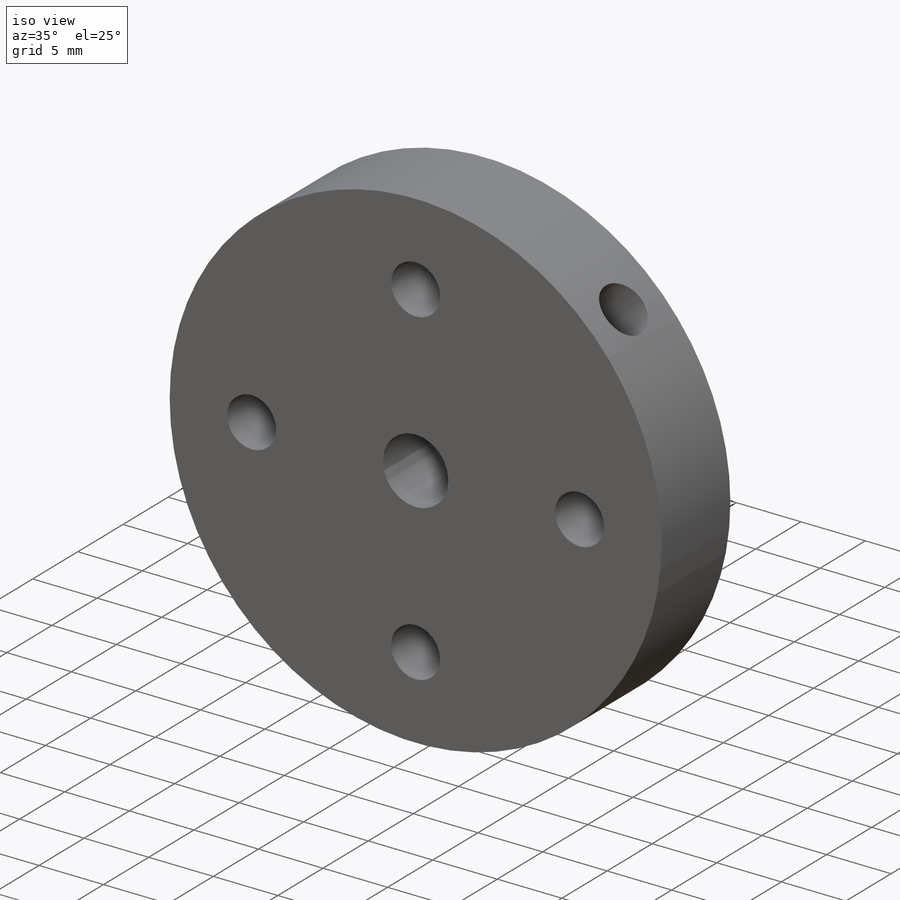
[diagram: iso view]
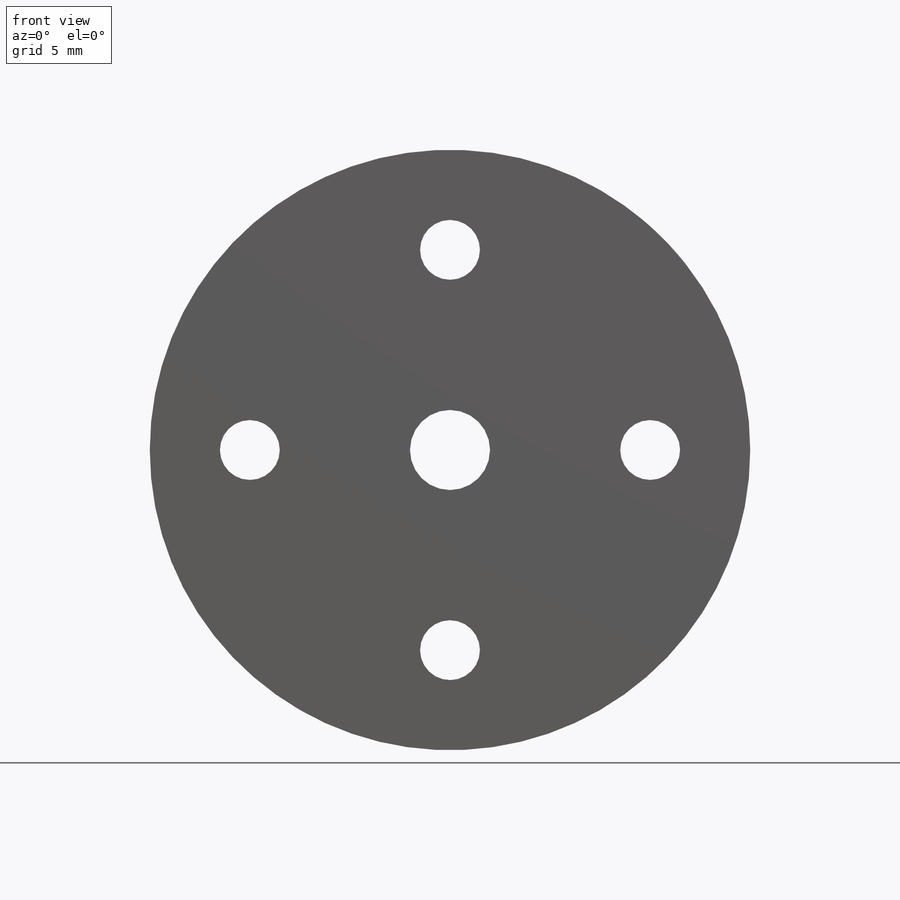
[diagram: front view]
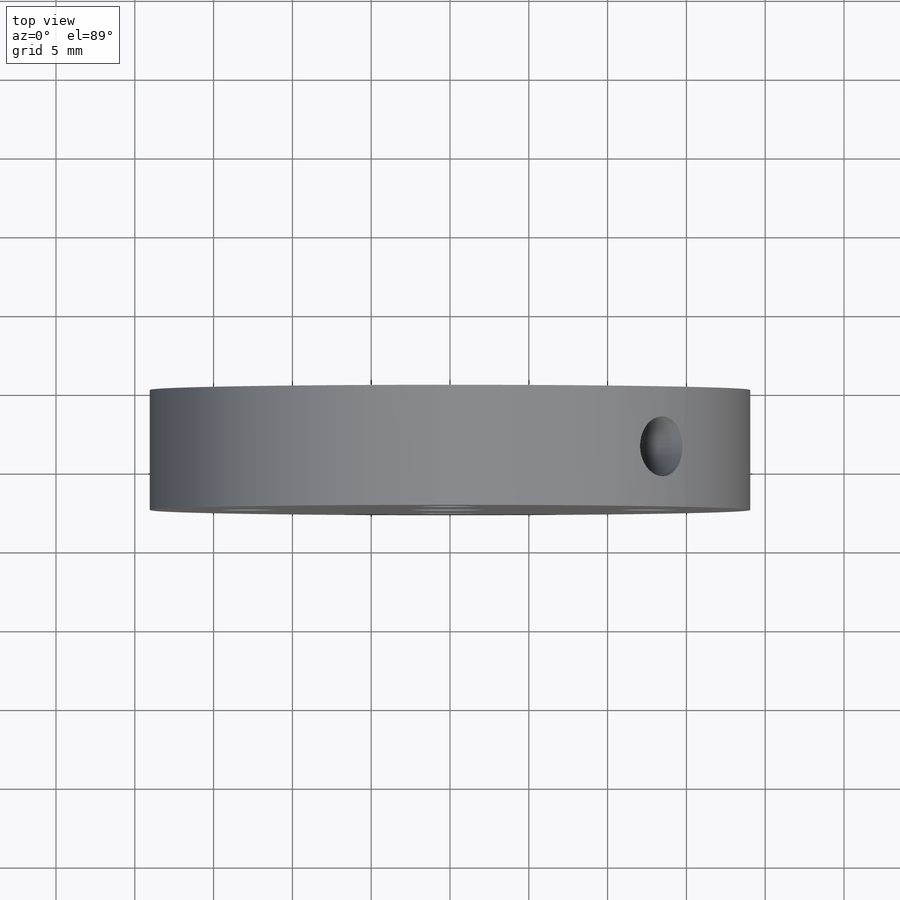
[diagram: top view]
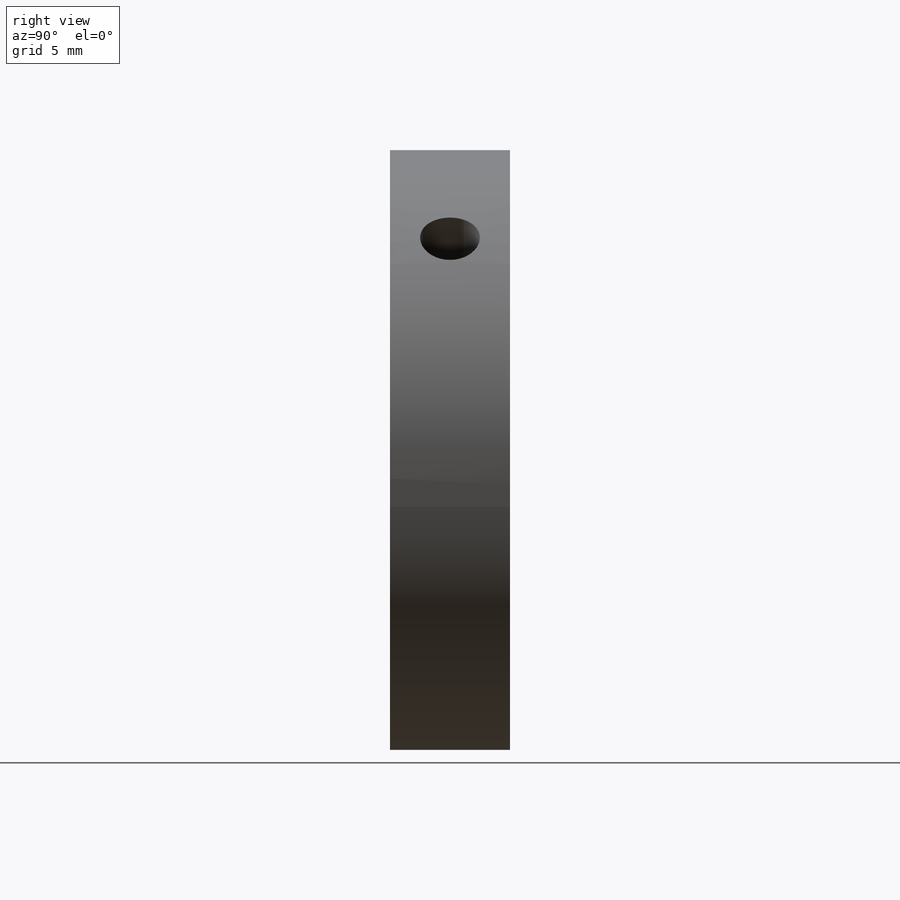
[diagram: right view]
SOLIDWORKS PART (.sldprt)
format: sldprt  version: not decoded by parser v0  size: 245,248 bytes
history: native  units: mm
features: sketch x9, hole x2, material x1, extrude x1, cut_extrude x1, thread x1, pattern_circular x1, plane x1 (+11 scaffold rows collapsed)
feature tree (28):
  scaffold x11  (default folders/planes/origin — collapsed)
  material  "6061-T6 (SS)"
  sketch  "Sketch1"  dims[D1=38.1mm]
  extrude  "Boss-Extrude1"  Depth=7.62mm
  sketch  "Sketch2"  dims[D1=5.08mm]
  cut_extrude  "Cut-Extrude1"  [1 undecoded]
  sketch  "Sketch4"  dims[D1=12.7mm]
  hole  "#10-24 Tapped Hole1"  Diameter=3.7973mm Depth=7.62mm
  sketch  "Sketch6"
  sketch  "Sketch5"  dims[hole-wizard template sketch: 60 standard entries collapsed; hole parameters kept: c18.Thru Tap Drill Depth=7.62mm]
  thread  "Hole Thread1"  Diameter=4.826mm  [1 undecoded]
  pattern_circular  "CirPattern1"  Count=4 Angle=360deg
  sketch  "Sketch7"  dims[c1.D1=~13.470384mm c2.D1=45.0deg]
  plane  "Plane1"
  sketch  "Sketch8"
  hole  "#10-24 Tapped Hole4"  Diameter=3.7973mm Depth=20.0279mm
  sketch  "Sketch10"
  sketch  "Sketch9"  dims[hole-wizard template sketch: 47 standard entries collapsed; hole parameters kept: c15.Tap Drill Depth=20.0279mm c15.D3=~14.816244mm c15.Drill Angle=118.0deg c15.D1=9.652mm c15.D2=4.826mm]
decode coverage: 11 of 15 modeling features carry decoded parameters
note: ~ marks probable driven/reference dimensions
note: 2 parameter values undecoded
note: suppression state not decoded; provenance and decode notes live in map.json
